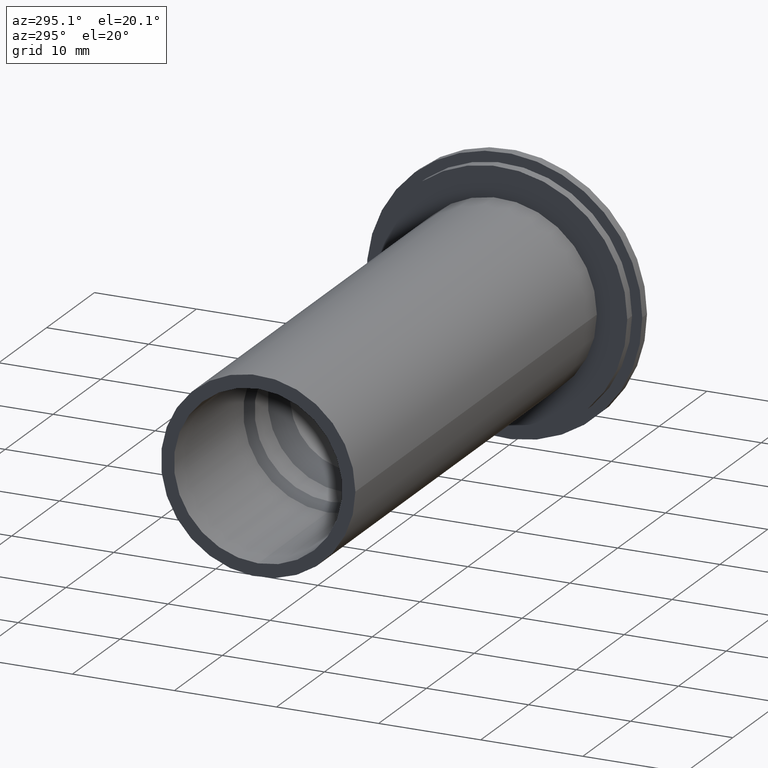
[diagram: clean part render]
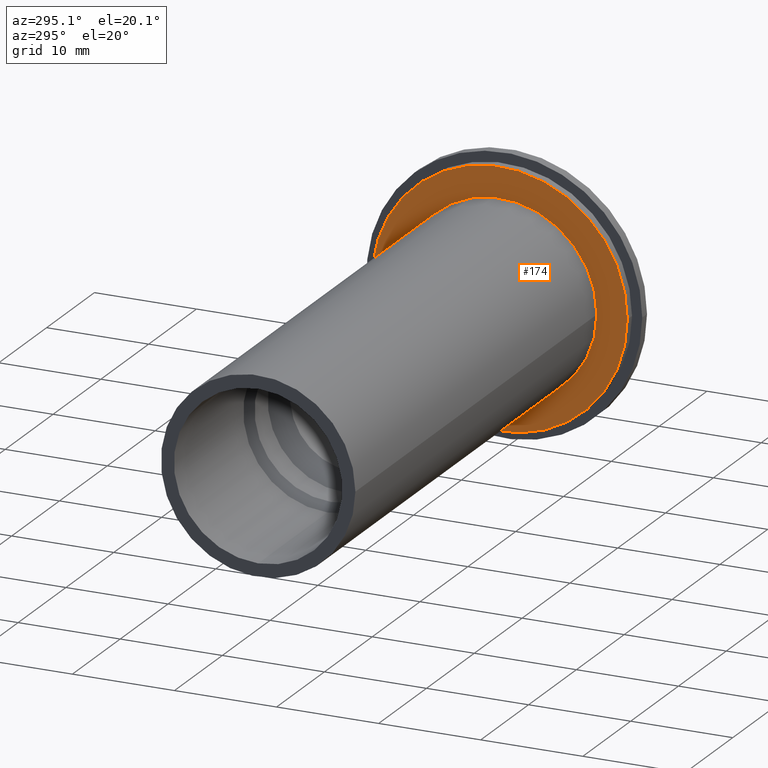
[diagram: same view with one face highlighted and labeled with its STEP entity id]
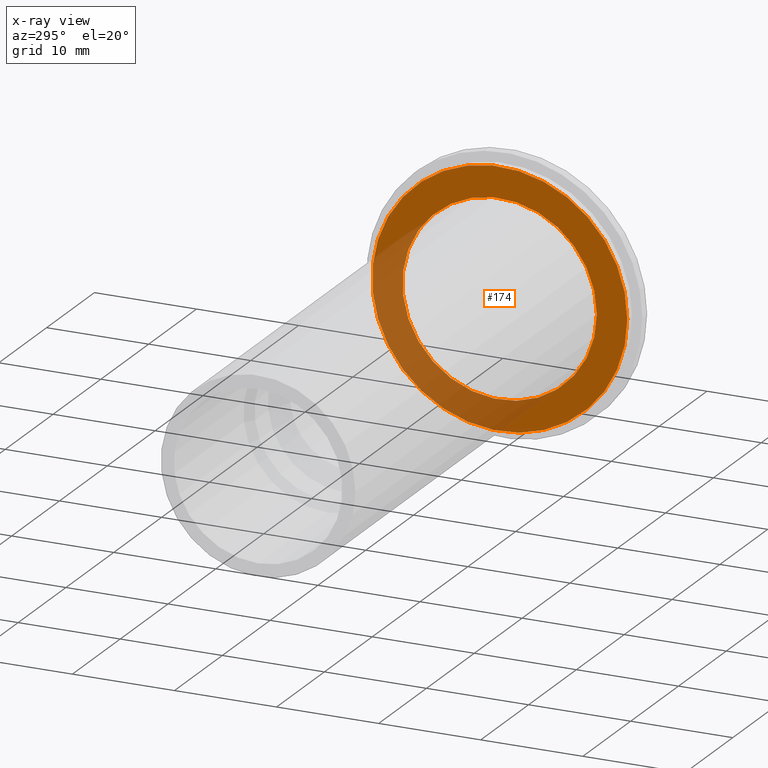
[diagram: x-ray of the same camera — body ghosted, the highlighted face saturated]
A machine part, auxiliary view. The second image highlights one B-rep face of the part: STEP entity #174.
The next image is the same camera in x-ray: the body ghosted, the highlighted face saturated — about 34% of this face is hidden behind the body in this view.
In plain terms, the highlighted planar face has unit normal (-1, 0, 0).
Its self-contained STEP definition (entity closure, byte-faithful):
#18=FACE_BOUND('',#55,.T.);
#22=PLANE('',#221);
#39=FACE_OUTER_BOUND('',#54,.T.);
#54=EDGE_LOOP('',(#156));
#55=EDGE_LOOP('',(#157));
#84=CIRCLE('',#220,9.525);
#85=CIRCLE('',#222,12.5);
#97=VERTEX_POINT('',#323);
#98=VERTEX_POINT('',#327);
#116=EDGE_CURVE('',#97,#97,#84,.T.);
#118=EDGE_CURVE('',#98,#98,#85,.T.);
#156=ORIENTED_EDGE('',*,*,#118,.F.);
#157=ORIENTED_EDGE('',*,*,#116,.T.);
#174=ADVANCED_FACE('',(#39,#18),#22,.T.);
#220=AXIS2_PLACEMENT_3D('',#324,#274,#275);
#221=AXIS2_PLACEMENT_3D('',#326,#277,#278);
#222=AXIS2_PLACEMENT_3D('',#328,#279,#280);
#274=DIRECTION('center_axis',(1.,0.,0.));
#275=DIRECTION('ref_axis',(0.,0.,-1.));
#277=DIRECTION('center_axis',(-1.,0.,0.));
#278=DIRECTION('ref_axis',(0.,0.,1.));
#279=DIRECTION('center_axis',(1.,0.,0.));
#280=DIRECTION('ref_axis',(0.,0.,-1.));
#323=CARTESIAN_POINT('',(-2.,-9.525,-1.16647607618785E-15));
#324=CARTESIAN_POINT('Origin',(-2.,0.,0.));
#326=CARTESIAN_POINT('Origin',(-2.,12.5,0.));
#327=CARTESIAN_POINT('',(-2.,-12.5,-1.53080849893419E-15));
#328=CARTESIAN_POINT('Origin',(-2.,0.,0.));